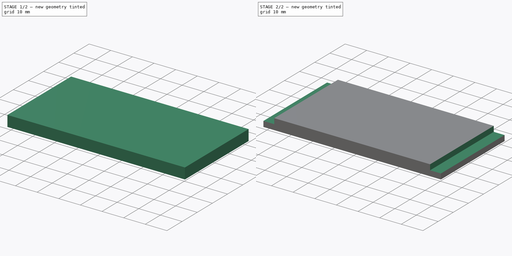
[diagram: build sequence overview — one tinted view per stage of 2, left to right]
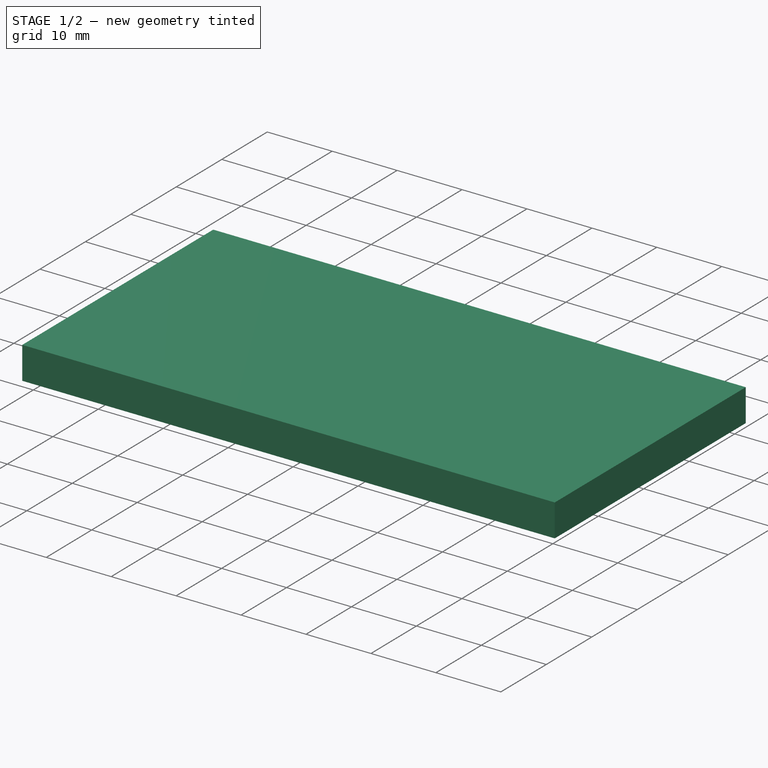
[diagram: stage 1 of 2 — iso view after this stage's code; geometry added in this stage tinted green]
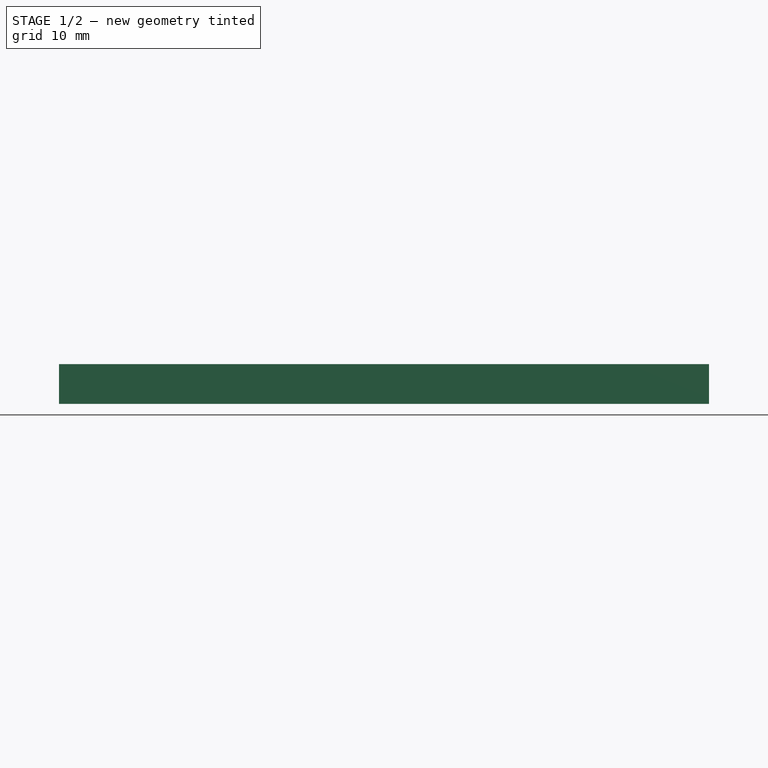
[diagram: stage 1 of 2 — front view after this stage's code; geometry added in this stage tinted green]
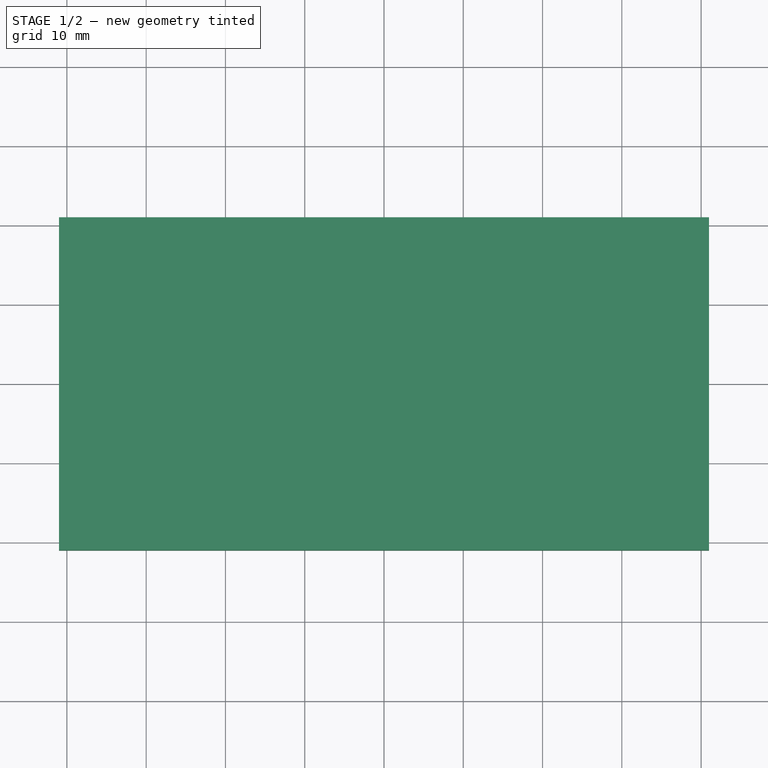
[diagram: stage 1 of 2 — top view after this stage's code; geometry added in this stage tinted green]
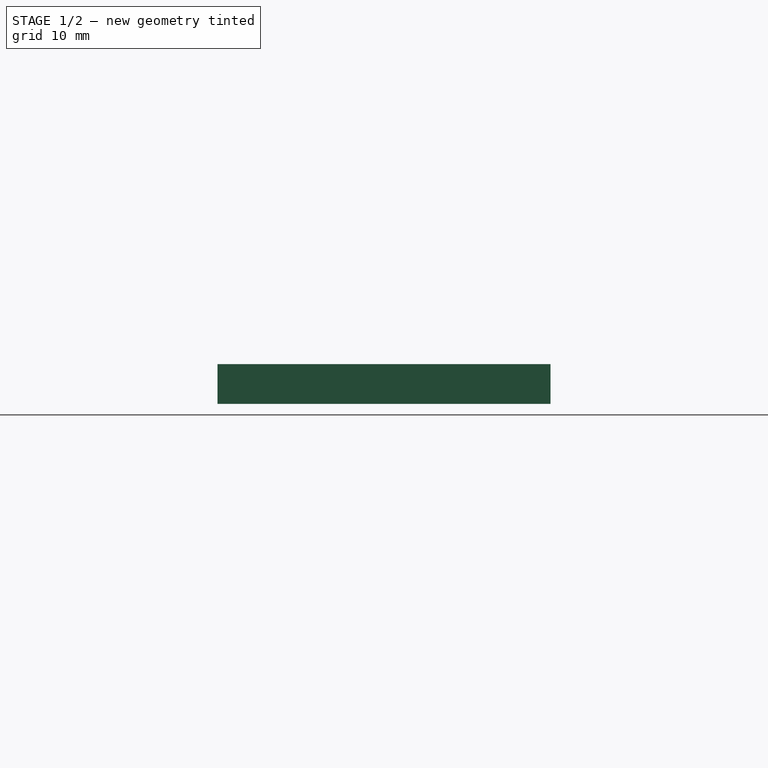
[diagram: stage 1 of 2 — right view after this stage's code; geometry added in this stage tinted green]
FCSTD DOCUMENT  (FreeCAD 0.16R)
Label: cap_bearing_mount
License: All rights reserved
LicenseURL: http://en.wikipedia.org/wiki/All_rights_reserved
objects: Sketcher::SketchObject×2, PartDesign::Pad×1, PartDesign::Pocket×1
note: 6 computed .brp shape members not serialized (recipe doc carries the construction recipe); baked Part::Feature solids carry a one-line shape summary decoded from their .brp

FEATURE [Sketcher::SketchObject] Sketch
  sketch-geometry (4):
    g0: LineSegment StartX=-41 StartY=21 StartZ=0 EndX=41 EndY=21 EndZ=0
    g1: LineSegment StartX=41 StartY=21 StartZ=0 EndX=41 EndY=-21 EndZ=0
    g2: LineSegment StartX=41 StartY=-21 StartZ=0 EndX=-41 EndY=-21 EndZ=0
    g3: LineSegment StartX=-41 StartY=-21 StartZ=0 EndX=-41 EndY=21 EndZ=0
  constraints (11):
    c: Coincident(g0,g1)
    c: Coincident(g1,g2)
    c: Coincident(g2,g3)
    c: Coincident(g3,g0)
    c: Horizontal(g0)
    c: Horizontal(g2)
    c: Vertical(g1)
    c: Vertical(g3)
    c: DistanceX(g0,g0) = 82
    c: DistanceY(g1,g1) = 42
    c: Symmetric(g0,g1,g-1)
FEATURE [PartDesign::Pad] Pad
  Length = 5
  Length2 = 100
  Sketch = -> Sketch
  Type = 0
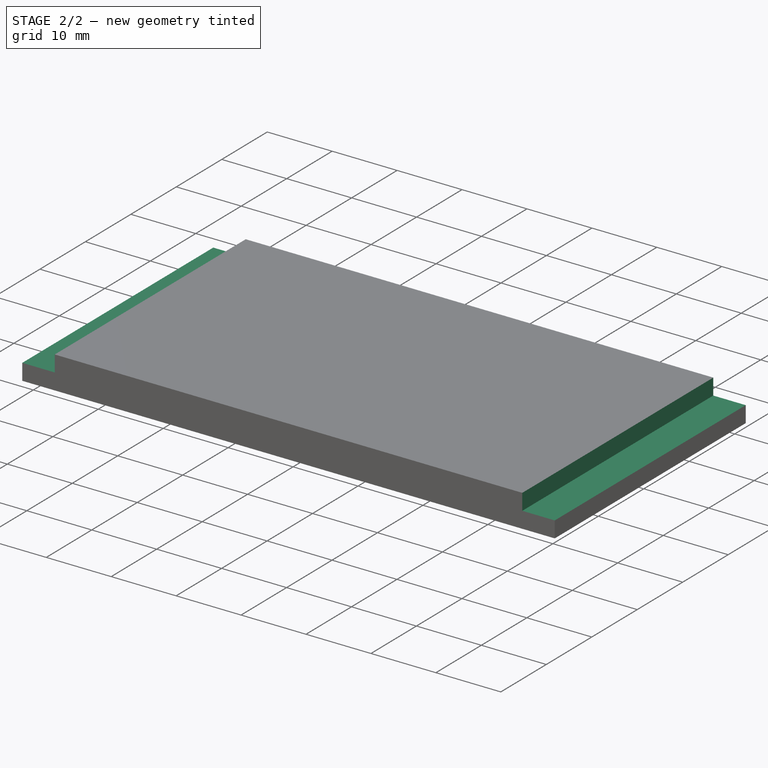
[diagram: stage 2 of 2 — iso view after this stage's code; geometry added in this stage tinted green]
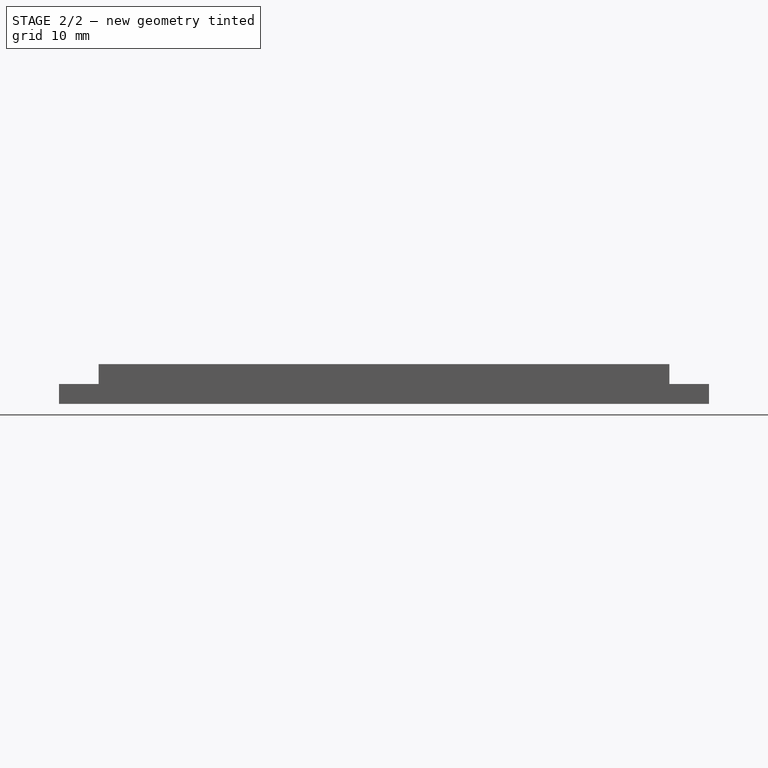
[diagram: stage 2 of 2 — front view after this stage's code; geometry added in this stage tinted green]
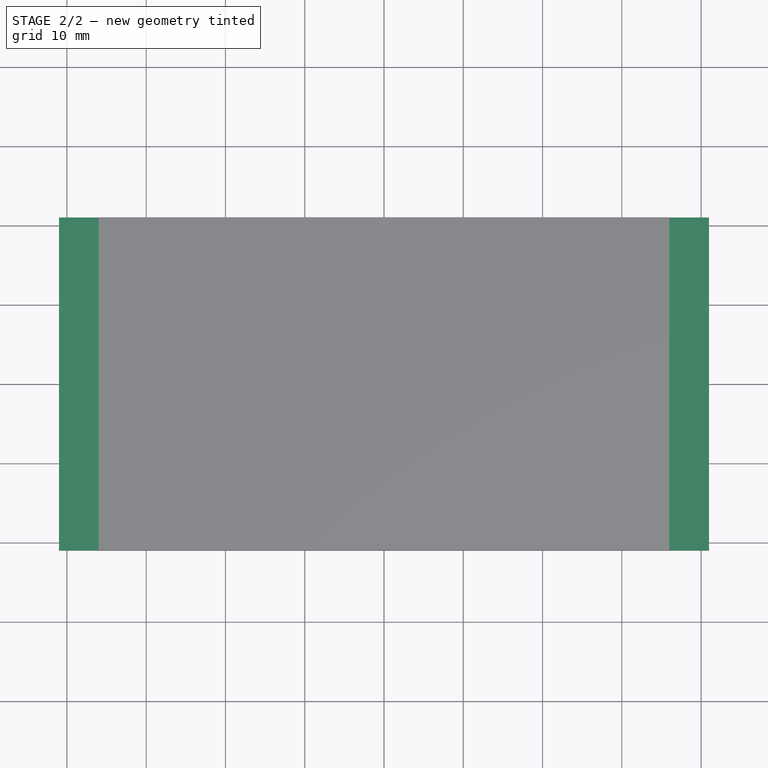
[diagram: stage 2 of 2 — top view after this stage's code; geometry added in this stage tinted green]
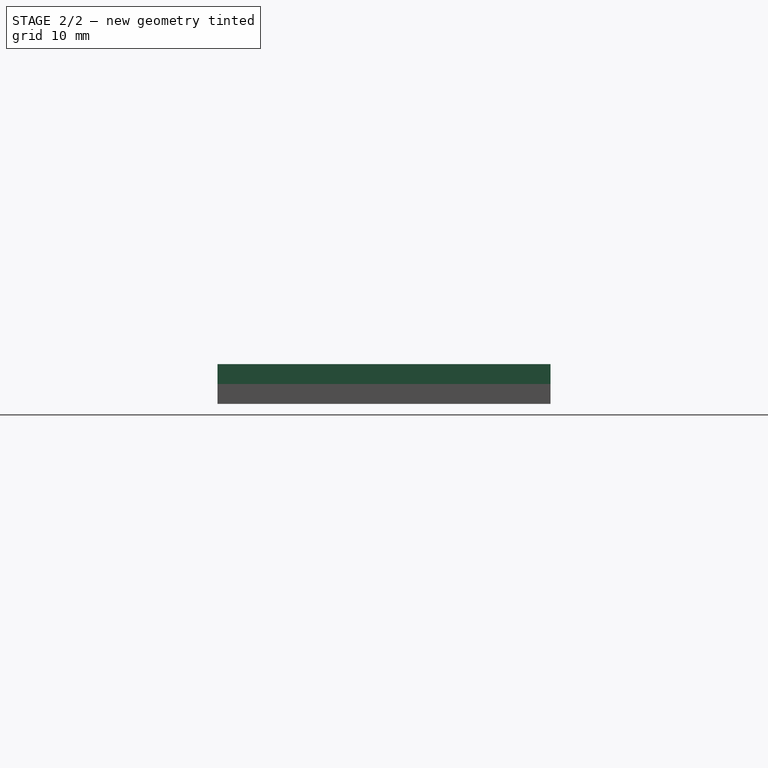
[diagram: stage 2 of 2 — right view after this stage's code; geometry added in this stage tinted green]
FEATURE [Sketcher::SketchObject] Sketch001
  ExternalGeometry = -> [Pad]
  Placement = pos=(0,0,5) rot=(0,0,1;0rad)
  Support = -> Pad [Face6]
  sketch-geometry (8):
    g0: LineSegment StartX=-41 StartY=21 StartZ=0 EndX=-36 EndY=21 EndZ=0
    g1: LineSegment StartX=-36 StartY=21 StartZ=0 EndX=-36 EndY=-21 EndZ=0
    g2: LineSegment StartX=-36 StartY=-21 StartZ=0 EndX=-41 EndY=-21 EndZ=0
    g3: LineSegment StartX=-41 StartY=-21 StartZ=0 EndX=-41 EndY=21 EndZ=0
    g4: LineSegment StartX=41 StartY=21 StartZ=0 EndX=36 EndY=21 EndZ=0
    g5: LineSegment StartX=36 StartY=21 StartZ=0 EndX=36 EndY=-21 EndZ=0
    g6: LineSegment StartX=36 StartY=-21 StartZ=0 EndX=41 EndY=-21 EndZ=0
    g7: LineSegment StartX=41 StartY=-21 StartZ=0 EndX=41 EndY=21 EndZ=0
  constraints (22):
    c: Coincident(g0,g1)
    c: Coincident(g1,g2)
    c: Coincident(g2,g3)
    c: Coincident(g3,g0)
    c: Horizontal(g0)
    c: Horizontal(g2)
    c: Vertical(g1)
    c: Vertical(g3)
    c: Coincident(g0,g-3)
    c: DistanceY(g1,g1) = 42
    c: DistanceX(g0,g0) = 5
    c: Coincident(g4,g5)
    c: Coincident(g5,g6)
    c: Coincident(g6,g7)
    c: Coincident(g7,g4)
    c: Horizontal(g4)
    c: Horizontal(g6)
    c: Vertical(g5)
    c: Vertical(g7)
    c: Coincident(g4,g-4)
    c: DistanceY(g5,g5) = 42
    c: DistanceX(g4,g4) = 5
FEATURE [PartDesign::Pocket] Pocket
  Length = 2.5
  Sketch = -> Sketch001
  Type = 0
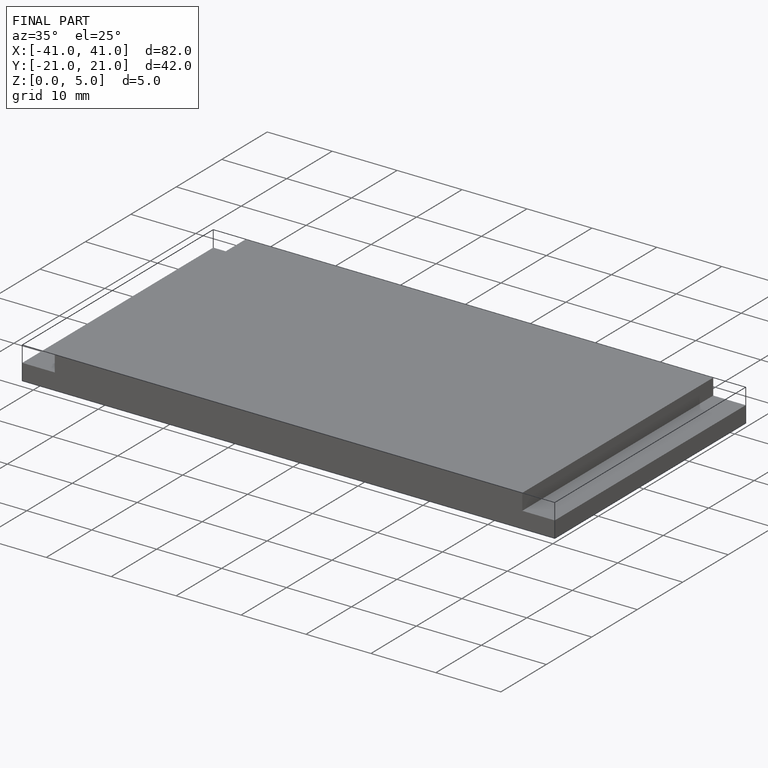
[diagram: finished part — iso view with bounding-box wireframe]
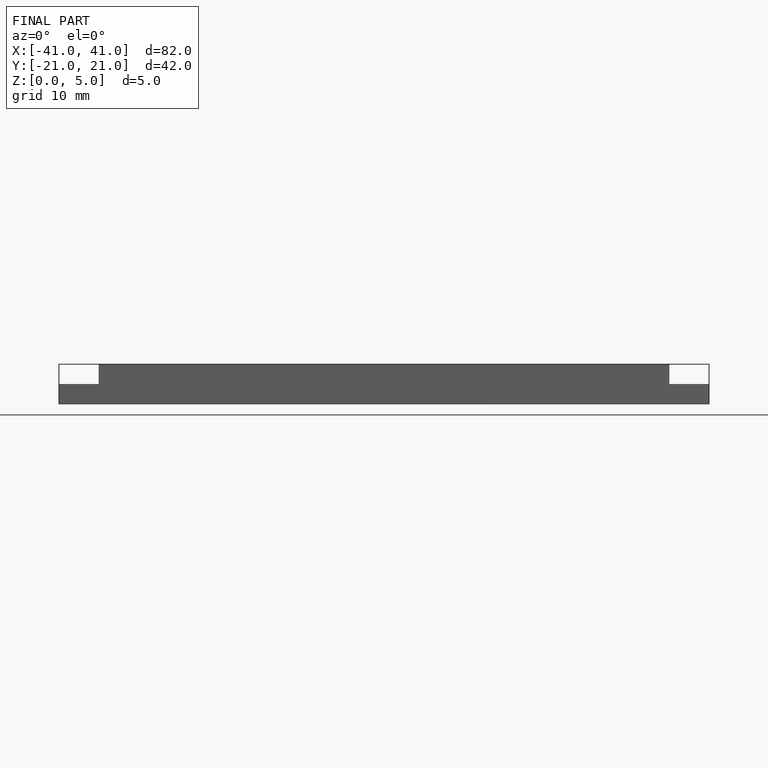
[diagram: finished part — front view with bounding-box wireframe]
